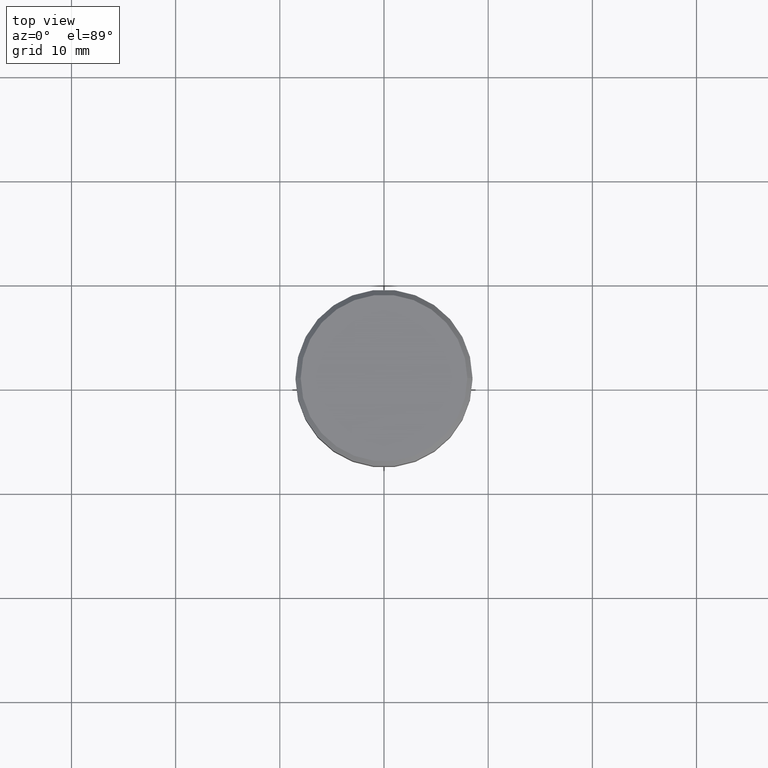
[diagram: clean part render]
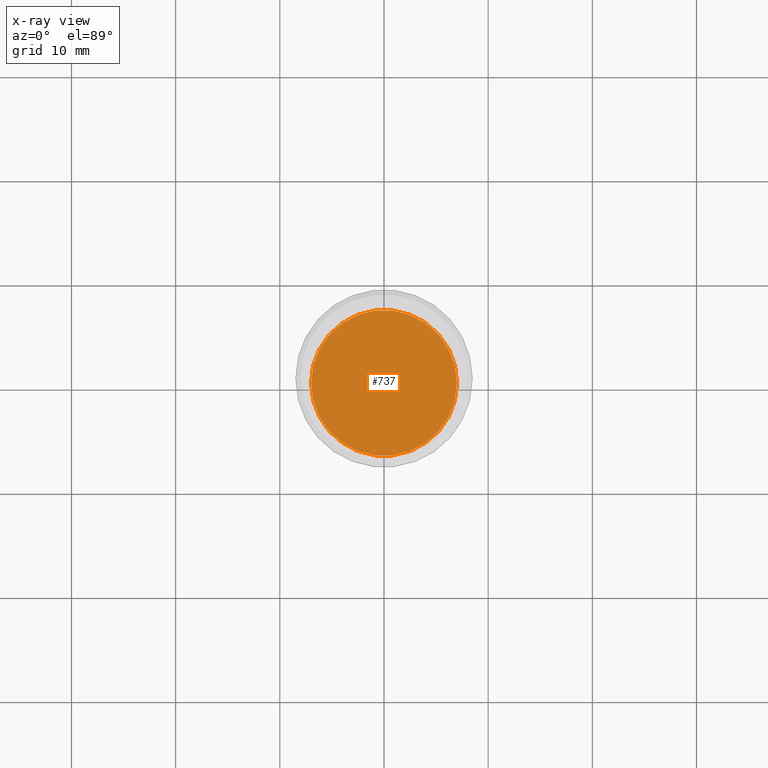
[diagram: x-ray — body ghosted, one internal face saturated and labeled with its STEP entity id]
A machine part, top view, then the same camera in x-ray: the body is ghosted and one INTERNAL B-rep face — a face not visible from any outside direction — is saturated and labeled: STEP entity #737.
In plain terms, the highlighted planar face has unit normal (0, 0, -1).
Its self-contained STEP definition (entity closure, byte-faithful):
#21 = CIRCLE ( 'NONE', #922, 6.999999999999999112 ) ;
#37 = DIRECTION ( 'NONE',  ( 0.000000000000000000, 0.000000000000000000, -1.000000000000000000 ) ) ;
#122 = DIRECTION ( 'NONE',  ( -0.000000000000000000, -0.000000000000000000, 1.000000000000000000 ) ) ;
#125 = PLANE ( 'NONE',  #941 ) ;
#146 = EDGE_LOOP ( 'NONE', ( #1026, #600 ) ) ;
#199 = VERTEX_POINT ( 'NONE', #433 ) ;
#219 = DIRECTION ( 'NONE',  ( -1.000000000000000000, 0.000000000000000000, -0.000000000000000000 ) ) ;
#258 = EDGE_CURVE ( 'NONE', #199, #632, #21, .T. ) ;
#292 = DIRECTION ( 'NONE',  ( -0.000000000000000000, -0.000000000000000000, 1.000000000000000000 ) ) ;
#433 = CARTESIAN_POINT ( 'NONE',  ( 6.999999999999999112, 0.000000000000000000, -28.00000000000000000 ) ) ;
#441 = AXIS2_PLACEMENT_3D ( 'NONE', #656, #292, #1023 ) ;
#600 = ORIENTED_EDGE ( 'NONE', *, *, #667, .T. ) ;
#632 = VERTEX_POINT ( 'NONE', #797 ) ;
#656 = CARTESIAN_POINT ( 'NONE',  ( 0.000000000000000000, 0.000000000000000000, -28.00000000000000000 ) ) ;
#662 = CIRCLE ( 'NONE', #441, 6.999999999999999112 ) ;
#667 = EDGE_CURVE ( 'NONE', #632, #199, #662, .T. ) ;
#737 = ADVANCED_FACE ( 'NONE', ( #1010 ), #125, .F. ) ;
#797 = CARTESIAN_POINT ( 'NONE',  ( -6.999999999999999112, 8.572527594031472204E-16, -28.00000000000000000 ) ) ;
#821 = CARTESIAN_POINT ( 'NONE',  ( 0.000000000000000000, 0.000000000000000000, -28.00000000000000000 ) ) ;
#847 = CARTESIAN_POINT ( 'NONE',  ( 0.000000000000000000, 0.000000000000000000, -28.00000000000000000 ) ) ;
#914 = DIRECTION ( 'NONE',  ( 1.000000000000000000, 0.000000000000000000, 0.000000000000000000 ) ) ;
#922 = AXIS2_PLACEMENT_3D ( 'NONE', #821, #122, #914 ) ;
#941 = AXIS2_PLACEMENT_3D ( 'NONE', #847, #37, #219 ) ;
#1010 = FACE_OUTER_BOUND ( 'NONE', #146, .T. ) ;
#1023 = DIRECTION ( 'NONE',  ( 1.000000000000000000, 0.000000000000000000, 0.000000000000000000 ) ) ;
#1026 = ORIENTED_EDGE ( 'NONE', *, *, #258, .T. ) ;